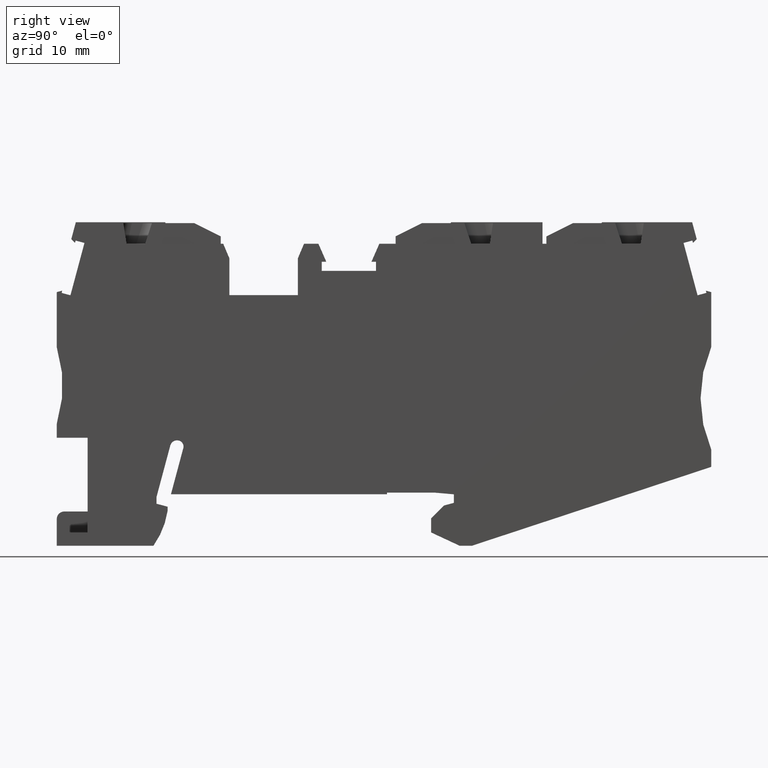
[diagram: clean part render]
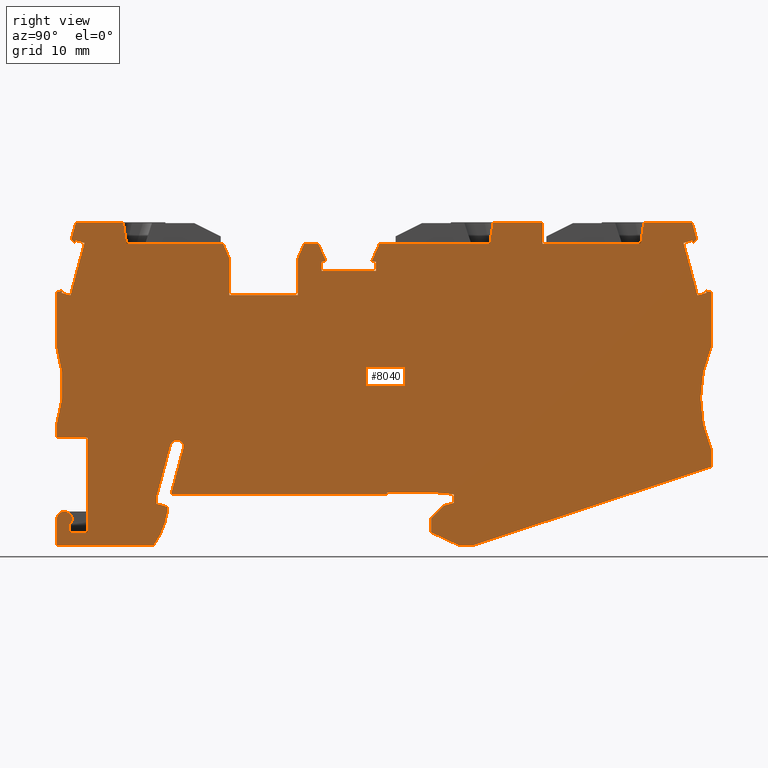
[diagram: same view with one face highlighted and labeled with its STEP entity id]
A machine part, right view. The second image highlights one B-rep face of the part: STEP entity #8040.
In plain terms, the highlighted planar face has unit normal (-1, -0, -0).
Its self-contained STEP definition (entity closure, byte-faithful):
#100=CARTESIAN_POINT('',(55.8575904551391,0.64429055278757,
6.47753305600609E-11));
#110=VERTEX_POINT('',#100);
#160=CARTESIAN_POINT('',(0.,-25.6765009430321,9.61355416103246E-11));
#170=DIRECTION('',(0.904601039469269,0.426259263114737,
-5.07871522614778E-13));
#180=VECTOR('',#170,1.);
#190=LINE('',#160,#180);
#200=CARTESIAN_POINT('',(82.4574372953317,13.1784692883301,
4.98413385275352E-11));
#210=VERTEX_POINT('',#200);
#220=EDGE_CURVE('',#110,#210,#190,.T.);
#1450=CARTESIAN_POINT('',(84.0755498602717,0.,5.06101868327092E-11));
#1460=DIRECTION('',(-0.121869343405147,0.992546151641322,
-5.77177194927003E-14));
#1470=VECTOR('',#1460,1.);
#1480=LINE('',#1450,#1470);
#1490=CARTESIAN_POINT('',(82.2135822231591,15.1645094743224,
4.97283528720052E-11));
#1500=VERTEX_POINT('',#1490);
#1510=EDGE_CURVE('',#210,#1500,#1480,.T.);
#1880=CARTESIAN_POINT('',(50.7279461954708,6.2610103526202,
6.66916782523061E-11));
#1890=VERTEX_POINT('',#1880);
#1920=CARTESIAN_POINT('',(6.79536030056848E-14,4.48955143673839,
-7.09995422008974E-11));
#1930=DIRECTION('',(-0.999390827019096,-0.034899496702501,
-1.05341836001729E-16));
#1940=VECTOR('',#1930,1.);
#1950=LINE('',#1920,#1940);
#1960=CARTESIAN_POINT('',(53.0212909493828,6.34109571613668,
6.55243687615656E-11));
#1970=VERTEX_POINT('',#1960);
#1980=EDGE_CURVE('',#1970,#1890,#1950,.T.);
#2220=CARTESIAN_POINT('',(95.1276197746287,22.7952128573163,
4.2292665589433E-11));
#2230=DIRECTION('',(0.,0.,1.));
#2240=DIRECTION('',(0.992546151641322,0.121869343405147,0.));
#2250=AXIS2_PLACEMENT_3D('',#2220,#2230,#2240);
#2260=CIRCLE('',#2250,15.);
#2270=CARTESIAN_POINT('',(80.7511501013421,27.0750632908093,
4.90357402389605E-11));
#2280=VERTEX_POINT('',#2270);
#2290=EDGE_CURVE('',#2280,#1500,#2260,.T.);
#2560=CARTESIAN_POINT('',(45.5459880980494,35.592208827346,
6.5783711811207E-11));
#2570=DIRECTION('',(-5.04792261591741E-13,-1.20135832601315E-13,-1.));
#2580=DIRECTION('',(-0.992546151641485,-0.121869343403826,
5.15670491659679E-13));
#2590=AXIS2_PLACEMENT_3D('',#2560,#2570,#2580);
#2600=PLANE('',#2590);
#2610=CARTESIAN_POINT('',(0.,-6.21415916436435,9.3797416976373E-11));
#2620=DIRECTION('',(-0.992546151641272,-0.121869343405557,
5.15663900468866E-13));
#2630=VECTOR('',#2620,1.);
#2640=LINE('',#2610,#2630);
#2650=CARTESIAN_POINT('',(54.4182978727007,0.467567645041457,
6.55251278828019E-11));
#2660=VERTEX_POINT('',#2650);
#2670=EDGE_CURVE('',#110,#2660,#2640,.T.);
#2680=ORIENTED_EDGE('',*,*,#2670,.F.);
#2690=CARTESIAN_POINT('',(6.66266484715709E-14,18.1491444593505,
-7.10005635382491E-11));
#2700=DIRECTION('',(-0.951056516295154,0.309016994374948,
-1.25340526193273E-16));
#2710=VECTOR('',#2700,1.);
#2720=LINE('',#2690,#2710);
#2730=CARTESIAN_POINT('',(50.9335437868797,1.5998328840521,
6.71478241230487E-11));
#2740=VERTEX_POINT('',#2730);
#2750=EDGE_CURVE('',#2660,#2740,#2720,.T.);
#2760=ORIENTED_EDGE('',*,*,#2750,.F.);
#2770=CARTESIAN_POINT('',(51.1299785650661,-7.56201908731974E-13,
-7.0993725059654E-11));
#2780=DIRECTION('',(-0.121869343405148,0.992546151641323,
-8.59348256359817E-17));
#2790=VECTOR('',#2780,1.);
#2800=LINE('',#2770,#2790);
#2810=CARTESIAN_POINT('',(50.7320747686677,3.24066636287422,
6.70524077373136E-11));
#2820=VERTEX_POINT('',#2810);
#2830=EDGE_CURVE('',#2740,#2820,#2800,.T.);
#2840=ORIENTED_EDGE('',*,*,#2830,.F.);
#2850=CARTESIAN_POINT('',(48.2001887190497,-7.52933808065804E-13,
-7.09940391514979E-11));
#2860=DIRECTION('',(0.615661475325658,0.788010753606723,
8.69110320229915E-18));
#2870=VECTOR('',#2860,1.);
#2880=LINE('',#2850,#2870);
#2890=CARTESIAN_POINT('',(52.0264251236401,4.89735926884724,
6.61999639712476E-11));
#2900=VERTEX_POINT('',#2890);
#2910=EDGE_CURVE('',#2820,#2900,#2880,.T.);
#2920=ORIENTED_EDGE('',*,*,#2910,.F.);
#2930=CARTESIAN_POINT('',(6.99559683130159E-14,-16.1226809175491,
-7.09980010098258E-11));
#2940=DIRECTION('',(0.927183854566808,0.374606593415861,
7.26373657084862E-17));
#2950=VECTOR('',#2940,1.);
#2960=LINE('',#2930,#2950);
#2970=CARTESIAN_POINT('',(53.1431602927879,5.34854956449537,
6.55820864810583E-11));
#2980=VERTEX_POINT('',#2970);
#2990=EDGE_CURVE('',#2900,#2980,#2960,.T.);
#3000=ORIENTED_EDGE('',*,*,#2990,.F.);
#3010=CARTESIAN_POINT('',(53.799879602532,-7.52389828812708E-13,
-7.09934388295201E-11));
#3020=DIRECTION('',(-0.121869343405148,0.992546151641323,
-8.59348256359817E-17));
#3030=VECTOR('',#3020,1.);
#3040=LINE('',#3010,#3030);
#3050=EDGE_CURVE('',#2980,#1970,#3040,.T.);
#3060=ORIENTED_EDGE('',*,*,#3050,.F.);
#3070=ORIENTED_EDGE('',*,*,#1980,.F.);
#3080=CARTESIAN_POINT('',(6.83865906482598E-14,0.0324017535032963,
-7.09992089366891E-11));
#3090=DIRECTION('',(-0.992546151641322,-0.121869343405148,
-9.82259016566094E-17));
#3100=VECTOR('',#3090,1.);
#3110=LINE('',#3080,#3100);
#3120=CARTESIAN_POINT('',(45.2550570978995,5.58902406790476,
6.95350132570171E-11));
#3130=VERTEX_POINT('',#3120);
#3140=EDGE_CURVE('',#1890,#3130,#3110,.T.);
#3150=ORIENTED_EDGE('',*,*,#3140,.F.);
#3160=CARTESIAN_POINT('',(42.706781851616,26.3430604674701,
-7.09965977682722E-11));
#3170=DIRECTION('',(0.121869343405148,-0.992546151641323,
8.59348256359817E-17));
#3180=VECTOR('',#3170,1.);
#3190=LINE('',#3160,#3180);
#3200=CARTESIAN_POINT('',(45.2794309665806,5.39051483757574,
6.9546557579848E-11));
#3210=VERTEX_POINT('',#3200);
#3220=EDGE_CURVE('',#3130,#3210,#3190,.T.);
#3230=ORIENTED_EDGE('',*,*,#3220,.F.);
#3240=CARTESIAN_POINT('',(7.55115928164551E-14,-0.169100211589233,
-7.09991938702458E-11));
#3250=DIRECTION('',(-0.992546151641322,-0.121869343405148,
-9.82259016566094E-17));
#3260=VECTOR('',#3250,1.);
#3270=LINE('',#3240,#3260);
#3280=CARTESIAN_POINT('',(20.2477989119895,2.3170168870697,
8.2551577740236E-11));
#3290=VERTEX_POINT('',#3280);
#3300=EDGE_CURVE('',#3210,#3290,#3270,.T.);
#3310=ORIENTED_EDGE('',*,*,#3300,.F.);
#3320=CARTESIAN_POINT('',(19.9221634246609,-7.52128149429617E-13,
-7.09970707331382E-11));
#3330=DIRECTION('',(-0.139173100960119,-0.990268068741564,
5.75839333883656E-17));
#3340=VECTOR('',#3330,1.);
#3350=LINE('',#3320,#3340);
#3360=CARTESIAN_POINT('',(21.0263705196209,7.85684173071595,
8.18315165150582E-11));
#3370=VERTEX_POINT('',#3360);
#3380=EDGE_CURVE('',#3370,#3290,#3350,.T.);
#3390=ORIENTED_EDGE('',*,*,#3380,.T.);
#3400=CARTESIAN_POINT('',(20.3331828715015,7.95426290138764,
-7.09976214150927E-11));
#3410=DIRECTION('',(-1.12577348889874E-16,8.16781307540979E-17,1.));
#3420=DIRECTION('',(0.992546151641322,0.121869343405148,
9.82259016566094E-17));
#3430=AXIS2_PLACEMENT_3D('',#3400,#3410,#3420);
#3440=CIRCLE('',#3430,0.700000000000178);
#3450=CARTESIAN_POINT('',(20.4087883003755,8.65016793738396,
8.18313821918876E-11));
#3460=VERTEX_POINT('',#3450);
#3470=EDGE_CURVE('',#3370,#3460,#3440,.T.);
#3480=ORIENTED_EDGE('',*,*,#3470,.F.);
#3490=CARTESIAN_POINT('',(20.2742268604431,7.86156587114061,
-7.09976208045248E-11));
#3500=DIRECTION('',(-1.12577348889874E-16,8.16781307540979E-17,1.));
#3510=DIRECTION('',(0.992546151641322,0.121869343405148,
9.82259016566094E-17));
#3520=AXIS2_PLACEMENT_3D('',#3490,#3500,#3510);
#3530=CIRCLE('',#3520,0.799999999999973);
#3540=CARTESIAN_POINT('',(19.48201240545,7.97290435190924,
8.18721884486355E-11));
#3550=VERTEX_POINT('',#3540);
#3560=EDGE_CURVE('',#3460,#3550,#3530,.T.);
#3570=ORIENTED_EDGE('',*,*,#3560,.F.);
#3580=CARTESIAN_POINT('',(18.3614937728258,-7.52279759925482E-13,
-7.09972380467117E-11));
#3590=DIRECTION('',(0.139173100960507,0.990268068741509,
-5.75839333883403E-17));
#3600=VECTOR('',#3590,1.);
#3610=LINE('',#3580,#3600);
#3620=CARTESIAN_POINT('',(18.6165002904489,1.81446565449965,
8.3435445265089E-11));
#3630=VERTEX_POINT('',#3620);
#3640=EDGE_CURVE('',#3630,#3550,#3610,.T.);
#3650=ORIENTED_EDGE('',*,*,#3640,.T.);
#3660=CARTESIAN_POINT('',(18.8392886591102,-7.48680631094351E-13,
-7.09971868241037E-11));
#3670=DIRECTION('',(-0.121869343405148,0.992546151641323,
-8.59348256359817E-17));
#3680=VECTOR('',#3670,1.);
#3690=LINE('',#3660,#3680);
#3700=CARTESIAN_POINT('',(18.7139957651747,1.02042873317274,
8.34816941832643E-11));
#3710=VERTEX_POINT('',#3700);
#3720=EDGE_CURVE('',#3710,#3630,#3690,.T.);
#3730=ORIENTED_EDGE('',*,*,#3720,.T.);
#3740=CARTESIAN_POINT('',(8.22459660601978E-14,3.65050931862965,
-7.09994794651296E-11));
#3750=DIRECTION('',(-0.990268068741554,0.139173100960182,
-1.17120504732763E-16));
#3760=VECTOR('',#3750,1.);
#3770=LINE('',#3740,#3760);
#3780=CARTESIAN_POINT('',(20.0467569920996,0.833121357881572,
8.28314354157763E-11));
#3790=VERTEX_POINT('',#3780);
#3800=EDGE_CURVE('',#3790,#3710,#3770,.T.);
#3810=ORIENTED_EDGE('',*,*,#3800,.T.);
#3820=CARTESIAN_POINT('',(20.1490514322064,-7.52106108504245E-13,
-7.0997046409321E-11));
#3830=DIRECTION('',(-0.121869343405616,0.992546151641265,
-8.59348256360326E-17));
#3840=VECTOR('',#3830,1.);
#3850=LINE('',#3820,#3840);
#3860=CARTESIAN_POINT('',(20.1018012370323,0.384821958285007,
8.2857408012641E-11));
#3870=VERTEX_POINT('',#3860);
#3880=EDGE_CURVE('',#3870,#3790,#3850,.T.);
#3890=ORIENTED_EDGE('',*,*,#3880,.T.);
#3900=CARTESIAN_POINT('',(10.6053593749794,0.644806497501176,
-7.09981177655912E-11));
#3910=DIRECTION('',(-1.12577348889874E-16,8.16781307540979E-17,1.));
#3920=DIRECTION('',(0.992546151641322,0.121869343405148,
9.82259016566094E-17));
#3930=AXIS2_PLACEMENT_3D('',#3900,#3910,#3920);
#3940=CIRCLE('',#3930,9.49999999999899);
#3950=CARTESIAN_POINT('',(18.9548874062867,-3.88679163719655,
8.39496621322146E-11));
#3960=VERTEX_POINT('',#3950);
#3970=EDGE_CURVE('',#3960,#3870,#3940,.T.);
#3980=ORIENTED_EDGE('',*,*,#3970,.T.);
#3990=CARTESIAN_POINT('',(8.32042644918818E-14,-6.21415916434217,
-7.09987418769476E-11));
#4000=DIRECTION('',(0.992546151641318,0.121869343405185,
9.82259016565085E-17));
#4010=VECTOR('',#4000,1.);
#4020=LINE('',#3990,#4010);
#4030=CARTESIAN_POINT('',(7.74799288123761,-5.26282526054029,
8.97720167516484E-11));
#4040=VERTEX_POINT('',#4030);
#4050=EDGE_CURVE('',#4040,#3960,#4020,.T.);
#4060=ORIENTED_EDGE('',*,*,#4050,.T.);
#4070=CARTESIAN_POINT('',(7.1017991925155,-7.53373577490648E-13,
-7.09984451565791E-11));
#4080=DIRECTION('',(0.121869343404785,-0.992546151641367,
8.59348256359561E-17));
#4090=VECTOR('',#4080,1.);
#4100=LINE('',#4070,#4090);
#4110=CARTESIAN_POINT('',(7.37019791668276,-2.18593219045191,
8.95930703106499E-11));
#4120=VERTEX_POINT('',#4110);
#4130=EDGE_CURVE('',#4120,#4040,#4100,.T.);
#4140=ORIENTED_EDGE('',*,*,#4130,.T.);
#4150=CARTESIAN_POINT('',(8.26348945315978,-2.07624978138726,
-7.09981653734458E-11));
#4160=DIRECTION('',(-1.12577348889874E-16,8.16781307540979E-17,1.));
#4170=DIRECTION('',(0.992546151641322,0.121869343405148,
9.82259016566094E-17));
#4180=AXIS2_PLACEMENT_3D('',#4150,#4160,#4170);
#4190=CIRCLE('',#4180,0.899999999999821);
#4200=CARTESIAN_POINT('',(8.94076958501218,-2.66894837510727,
8.91290849146351E-11));
#4210=VERTEX_POINT('',#4200);
#4220=EDGE_CURVE('',#4210,#4120,#4190,.T.);
#4230=ORIENTED_EDGE('',*,*,#4220,.T.);
#4240=CARTESIAN_POINT('',(5.93294693330531,21.8278012943094,
-7.10002025448849E-11));
#4250=DIRECTION('',(0.121869343405115,-0.992546151641327,
8.59348256359943E-17));
#4260=VECTOR('',#4250,1.);
#4270=LINE('',#4240,#4260);
#4280=CARTESIAN_POINT('',(9.0540080935922,-3.59120201797049,
8.89119094419314E-11));
#4290=VERTEX_POINT('',#4280);
#4300=EDGE_CURVE('',#4210,#4290,#4270,.T.);
#4310=ORIENTED_EDGE('',*,*,#4300,.F.);
#4320=CARTESIAN_POINT('',(53.0248137783534,1.80773405057986,
-7.09936570869798E-11));
#4330=DIRECTION('',(0.992546151641322,0.121869343405148,
9.82259016566094E-17));
#4340=VECTOR('',#4330,1.);
#4350=LINE('',#4320,#4340);
#4360=CARTESIAN_POINT('',(11.138355012039,-3.33527639681968,
8.78290006792696E-11));
#4370=VERTEX_POINT('',#4360);
#4380=EDGE_CURVE('',#4290,#4370,#4350,.T.);
#4390=ORIENTED_EDGE('',*,*,#4380,.F.);
#4400=CARTESIAN_POINT('',(10.7288345641658,-7.53021230899832E-13,
-7.09980563156425E-11));
#4410=DIRECTION('',(0.121869343405148,-0.992546151641323,
8.59348256359817E-17));
#4420=VECTOR('',#4410,1.);
#4430=LINE('',#4400,#4420);
#4440=CARTESIAN_POINT('',(9.78560530024175,7.68198588639992,
8.71883246640411E-11));
#4450=VERTEX_POINT('',#4440);
#4460=EDGE_CURVE('',#4450,#4370,#4430,.T.);
#4470=ORIENTED_EDGE('',*,*,#4460,.T.);
#4480=CARTESIAN_POINT('',(7.48656240668463E-14,6.48046463644061,
-7.09996910628738E-11));
#4490=DIRECTION('',(0.992546151641322,0.121869343405148,
9.82259016566094E-17));
#4500=VECTOR('',#4490,1.);
#4510=LINE('',#4480,#4500);
#4520=CARTESIAN_POINT('',(6.21243915431466,7.24325625013914,
8.90447057838766E-11));
#4530=VERTEX_POINT('',#4520);
#4540=EDGE_CURVE('',#4530,#4450,#4510,.T.);
#4550=ORIENTED_EDGE('',*,*,#4540,.T.);
#4560=CARTESIAN_POINT('',(7.10179919249531,-7.53373577490651E-13,
-7.09984451565791E-11));
#4570=DIRECTION('',(0.121869343405148,-0.992546151641323,
8.59348256359817E-17));
#4580=VECTOR('',#4570,1.);
#4590=LINE('',#4560,#4580);
#4600=CARTESIAN_POINT('',(6.01744820486727,8.83133009275838,
9.60734781128143E-11));
#4610=VERTEX_POINT('',#4600);
#4620=EDGE_CURVE('',#4610,#4530,#4590,.T.);
#4630=ORIENTED_EDGE('',*,*,#4620,.T.);
#4640=CARTESIAN_POINT('',(-8.7333940894483,11.5539486132723,
-7.10010066854422E-11));
#4650=DIRECTION('',(-1.12577348889874E-16,8.16781307540979E-17,1.));
#4660=DIRECTION('',(0.992546151641322,0.121869343405148,
9.82259016566094E-17));
#4670=AXIS2_PLACEMENT_3D('',#4640,#4650,#4660);
#4680=CIRCLE('',#4670,15.);
#4690=CARTESIAN_POINT('',(4.920624114219,17.7642454575369,
9.60726250114368E-11));
#4700=VERTEX_POINT('',#4690);
#4710=EDGE_CURVE('',#4610,#4700,#4680,.T.);
#4720=ORIENTED_EDGE('',*,*,#4710,.F.);
#4730=CARTESIAN_POINT('',(7.1017991924953,-7.49820863811847E-13,
-7.10004435580235E-11));
#4740=DIRECTION('',(0.121869343405148,-0.992546151641323,
8.7278529820656E-17));
#4750=VECTOR('',#4740,1.);
#4760=LINE('',#4730,#4750);
#4770=CARTESIAN_POINT('',(4.14066998406936,24.1164620914143,
8.80635400408703E-11));
#4780=VERTEX_POINT('',#4770);
#4790=EDGE_CURVE('',#4780,#4700,#4760,.T.);
#4800=ORIENTED_EDGE('',*,*,#4790,.T.);
#4810=CARTESIAN_POINT('',(8.04203278848049E-14,22.4435228253566,
-7.10028830333762E-11));
#4820=DIRECTION('',(0.927183854569489,0.374606593409226,
7.13903257323892E-17));
#4830=VECTOR('',#4820,1.);
#4840=LINE('',#4810,#4830);
#4850=CARTESIAN_POINT('',(4.75394827525513,24.3642426047835,
8.77239814760513E-11));
#4860=VERTEX_POINT('',#4850);
#4870=EDGE_CURVE('',#4780,#4860,#4840,.T.);
#4880=ORIENTED_EDGE('',*,*,#4870,.F.);
#4890=CARTESIAN_POINT('',(1.32977728266994,-7.50381584078855E-13,
-7.1001062354968E-11));
#4900=DIRECTION('',(-0.139173100960752,-0.990268068741474,
5.91228089567854E-17));
#4910=VECTOR('',#4900,1.);
#4920=LINE('',#4890,#4910);
#4930=CARTESIAN_POINT('',(4.71605037920686,24.094585062701,
8.77758786556787E-11));
#4940=VERTEX_POINT('',#4930);
#4950=EDGE_CURVE('',#4860,#4940,#4920,.T.);
#4960=ORIENTED_EDGE('',*,*,#4950,.F.);
#4970=CARTESIAN_POINT('',(8.01955490884845E-14,24.7573827194942,
-7.10030560423035E-11));
#4980=DIRECTION('',(0.990268068741542,-0.139173100960264,
1.1656901722391E-16));
#4990=VECTOR('',#4980,1.);
#5000=LINE('',#4970,#4990);
#5010=CARTESIAN_POINT('',(5.77563721275947,23.9456698446736,
8.72588959077152E-11));
#5020=VERTEX_POINT('',#5010);
#5030=EDGE_CURVE('',#4940,#5020,#5000,.T.);
#5040=ORIENTED_EDGE('',*,*,#5030,.F.);
#5050=CARTESIAN_POINT('',(2.41029278527678,-7.50276617924776E-13,
-7.10009465169303E-11));
#5060=DIRECTION('',(-0.139173100960239,-0.990268068741546,
5.91228089568864E-17));
#5070=VECTOR('',#5060,1.);
#5080=LINE('',#5050,#5070);
#5090=CARTESIAN_POINT('',(6.65590707633302,30.2091153794641,
8.60621441822188E-11));
#5100=VERTEX_POINT('',#5090);
#5110=EDGE_CURVE('',#5100,#5020,#5080,.T.);
#5120=ORIENTED_EDGE('',*,*,#5110,.T.);
#5130=CARTESIAN_POINT('',(7.95750715891313E-14,31.1445421156725,
-7.10035336146918E-11));
#5140=DIRECTION('',(-0.990268068741591,0.13917310095992,
-1.1656901722391E-16));
#5150=VECTOR('',#5140,1.);
#5160=LINE('',#5130,#5150);
#5170=CARTESIAN_POINT('',(5.59632024277933,30.3580305974913,
8.65791269301648E-11));
#5180=VERTEX_POINT('',#5170);
#5190=EDGE_CURVE('',#5100,#5180,#5160,.T.);
#5200=ORIENTED_EDGE('',*,*,#5190,.F.);
#5210=CARTESIAN_POINT('',(1.32977728270688,-7.50381584078852E-13,
-7.1001062354968E-11));
#5220=DIRECTION('',(-0.139173100959432,-0.99026806874166,
5.91228089569874E-17));
#5230=VECTOR('',#5220,1.);
#5240=LINE('',#5210,#5230);
#5250=CARTESIAN_POINT('',(5.55842234673109,30.0883730554065,
8.66302941365563E-11));
#5260=VERTEX_POINT('',#5250);
#5270=EDGE_CURVE('',#5180,#5260,#5240,.T.);
#5280=ORIENTED_EDGE('',*,*,#5270,.F.);
#5290=CARTESIAN_POINT('',(7.92558016318644E-14,34.4310885409489,
-7.10037793520734E-11));
#5300=DIRECTION('',(0.788010753607563,-0.615661475324582,
1.30513134688569E-16));
#5310=VECTOR('',#5300,1.);
#5320=LINE('',#5290,#5310);
#5330=CARTESIAN_POINT('',(5.07616663276844,30.4651525130251,
8.68284717865709E-11));
#5340=VERTEX_POINT('',#5330);
#5350=EDGE_CURVE('',#5340,#5260,#5320,.T.);
#5360=ORIENTED_EDGE('',*,*,#5350,.T.);
#5370=CARTESIAN_POINT('',(0.794568669239845,-7.50433576659844E-13,
-7.10011197326876E-11));
#5380=DIRECTION('',(-0.139173100960457,-0.990268068741516,
5.91228089568612E-17));
#5390=VECTOR('',#5380,1.);
#5400=LINE('',#5370,#5390);
#5410=CARTESIAN_POINT('',(5.3589603462686,32.477334339739,
8.64440185993758E-11));
#5420=VERTEX_POINT('',#5410);
#5430=EDGE_CURVE('',#5420,#5340,#5400,.T.);
#5440=ORIENTED_EDGE('',*,*,#5430,.T.);
#5450=CARTESIAN_POINT('',(7.95095189922274E-14,31.8193367467264,
-7.10033620249548E-11));
#5460=DIRECTION('',(-0.992546151641322,-0.121869343405148,
-9.72949153238301E-17));
#5470=VECTOR('',#5460,1.);
#5480=LINE('',#5450,#5470);
#5490=CARTESIAN_POINT('',(10.8549108097143,33.1521522041373,
8.35887527207467E-11));
#5500=VERTEX_POINT('',#5490);
#5510=EDGE_CURVE('',#5500,#5420,#5480,.T.);
#5520=ORIENTED_EDGE('',*,*,#5510,.T.);
#5530=CARTESIAN_POINT('',(20.1301439303683,-7.48555231585537E-13,
-7.09988247931632E-11));
#5540=DIRECTION('',(0.269431410275851,-0.96301958191761,
1.00890386406827E-16));
#5550=VECTOR('',#5540,1.);
#5560=LINE('',#5530,#5550);
#5570=CARTESIAN_POINT('',(11.5362037454069,30.717029894447,
8.3537267409713E-11));
#5580=VERTEX_POINT('',#5570);
#5590=EDGE_CURVE('',#5500,#5580,#5560,.T.);
#5600=ORIENTED_EDGE('',*,*,#5590,.F.);
#5610=CARTESIAN_POINT('',(7.97542041246558E-14,29.3005621830808,
-7.10031736944139E-11));
#5620=DIRECTION('',(0.992546151641322,0.121869343405148,
9.72949153238301E-17));
#5630=VECTOR('',#5620,1.);
#5640=LINE('',#5610,#5630);
#5650=CARTESIAN_POINT('',(22.7387593504506,32.0925307654027,
7.77177839968377E-11));
#5660=VERTEX_POINT('',#5650);
#5670=EDGE_CURVE('',#5580,#5660,#5640,.T.);
#5680=ORIENTED_EDGE('',*,*,#5670,.F.);
#5690=CARTESIAN_POINT('',(41.2011308712365,-7.46508300785871E-13,
-7.0996565851229E-11));
#5700=DIRECTION('',(0.498657173381274,-0.866799298243485,
1.18270367560133E-16));
#5710=VECTOR('',#5700,1.);
#5720=LINE('',#5690,#5710);
#5730=CARTESIAN_POINT('',(23.6590813655678,30.4927653966377,
7.74453656760886E-11));
#5740=VERTEX_POINT('',#5730);
#5750=EDGE_CURVE('',#5660,#5740,#5720,.T.);
#5760=ORIENTED_EDGE('',*,*,#5750,.F.);
#5770=CARTESIAN_POINT('',(27.4031221755102,-7.47848701643817E-13,
-7.09982671288921E-11));
#5780=DIRECTION('',(-0.121869343405176,0.992546151641319,
-8.72785298206686E-17));
#5790=VECTOR('',#5780,1.);
#5800=LINE('',#5770,#5790);
#5810=CARTESIAN_POINT('',(24.1831195422099,26.2248169445816,
7.76930425593251E-11));
#5820=VERTEX_POINT('',#5810);
#5830=EDGE_CURVE('',#5820,#5740,#5800,.T.);
#5840=ORIENTED_EDGE('',*,*,#5830,.T.);
#5850=CARTESIAN_POINT('',(6.61305937272783E-14,23.2555032303283,
-7.10009453442763E-11));
#5860=DIRECTION('',(-0.992546151641319,-0.121869343405174,
-9.82259016566094E-17));
#5870=VECTOR('',#5860,1.);
#5880=LINE('',#5850,#5870);
#5890=CARTESIAN_POINT('',(32.1234887553402,27.199771691823,
7.35677313555742E-11));
#5900=VERTEX_POINT('',#5890);
#5910=EDGE_CURVE('',#5900,#5820,#5880,.T.);
#5920=ORIENTED_EDGE('',*,*,#5910,.T.);
#5930=CARTESIAN_POINT('',(35.4632007791809,-7.54171136577382E-13,
-7.09954046364775E-11));
#5940=DIRECTION('',(0.121869343405179,-0.992546151641319,
8.5934825636007E-17));
#5950=VECTOR('',#5940,1.);
#5960=LINE('',#5930,#5950);
#5970=CARTESIAN_POINT('',(31.5994505786982,31.4677201438788,
7.33192197480769E-11));
#5980=VERTEX_POINT('',#5970);
#5990=EDGE_CURVE('',#5980,#5900,#5960,.T.);
#6000=ORIENTED_EDGE('',*,*,#5990,.T.);
#6010=CARTESIAN_POINT('',(22.6289845756453,-7.55417910281448E-13,
-7.09967805449366E-11));
#6020=DIRECTION('',(-0.274147194873143,-0.961687743263471,
4.09156335346837E-17));
#6030=VECTOR('',#6020,1.);
#6040=LINE('',#6010,#6030);
#6050=CARTESIAN_POINT('',(32.1054168262376,33.2426116906947,
7.28508921909865E-11));
#6060=VERTEX_POINT('',#6050);
#6070=EDGE_CURVE('',#6060,#5980,#6040,.T.);
#6080=ORIENTED_EDGE('',*,*,#6070,.T.);
#6090=CARTESIAN_POINT('',(5.84379220518519E-14,29.3005621830756,
-7.10013973375745E-11));
#6100=DIRECTION('',(-0.992546151641304,-0.121869343405294,
-9.82259016567104E-17));
#6110=VECTOR('',#6100,1.);
#6120=LINE('',#6090,#6110);
#6130=CARTESIAN_POINT('',(33.7648010461218,33.4463584535027,
7.1988774183463E-11));
#6140=VERTEX_POINT('',#6130);
#6150=EDGE_CURVE('',#6140,#6060,#6120,.T.);
#6160=ORIENTED_EDGE('',*,*,#6150,.T.);
#6170=CARTESIAN_POINT('',(53.6422195780397,-7.52405144619269E-13,
-7.09934557316634E-11));
#6180=DIRECTION('',(0.510892985900243,-0.859644320028892,
1.18191535969853E-16));
#6190=VECTOR('',#6180,1.);
#6200=LINE('',#6170,#6190);
#6210=CARTESIAN_POINT('',(34.9394936524417,31.4697843867763,
7.16332430053619E-11));
#6220=VERTEX_POINT('',#6210);
#6230=EDGE_CURVE('',#6140,#6220,#6200,.T.);
#6240=ORIENTED_EDGE('',*,*,#6230,.F.);
#6250=CARTESIAN_POINT('',(6.57493742909557E-14,27.1797540004905,
-7.1001238763259E-11));
#6260=DIRECTION('',(-0.992546151641319,-0.121869343405174,
-9.82259016566094E-17));
#6270=VECTOR('',#6260,1.);
#6280=LINE('',#6250,#6270);
#6290=CARTESIAN_POINT('',(34.4155300604786,31.405449747208,
7.19051657119082E-11));
#6300=VERTEX_POINT('',#6290);
#6310=EDGE_CURVE('',#6220,#6300,#6280,.T.);
#6320=ORIENTED_EDGE('',*,*,#6310,.F.);
#6330=CARTESIAN_POINT('',(38.2716344176487,-7.53898312654638E-13,
-7.099510355478E-11));
#6340=DIRECTION('',(0.121869343405174,-0.99254615164132,
8.59348256359943E-17));
#6350=VECTOR('',#6340,1.);
#6360=LINE('',#6330,#6350);
#6370=CARTESIAN_POINT('',(34.5459302579221,30.3434253649522,
7.19669310963818E-11));
#6380=VERTEX_POINT('',#6370);
#6390=EDGE_CURVE('',#6300,#6380,#6360,.T.);
#6400=ORIENTED_EDGE('',*,*,#6390,.F.);
#6410=CARTESIAN_POINT('',(6.58540995276358E-14,26.101718487252,
-7.10011581577875E-11));
#6420=DIRECTION('',(0.992546151641326,0.121869343405116,
9.82259016566094E-17));
#6430=VECTOR('',#6420,1.);
#6440=LINE('',#6410,#6430);
#6450=CARTESIAN_POINT('',(40.8237846670535,31.1142489619895,
6.87053926964639E-11));
#6460=VERTEX_POINT('',#6450);
#6470=EDGE_CURVE('',#6380,#6460,#6440,.T.);
#6480=ORIENTED_EDGE('',*,*,#6470,.F.);
#6490=CARTESIAN_POINT('',(44.644134063676,-7.53279259269385E-13,
-7.09944203828567E-11));
#6500=DIRECTION('',(-0.121869343405174,0.99254615164132,
-8.59348256359943E-17));
#6510=VECTOR('',#6500,1.);
#6520=LINE('',#6490,#6510);
#6530=CARTESIAN_POINT('',(40.69338446961,32.1762733442457,
6.86435475211271E-11));
#6540=VERTEX_POINT('',#6530);
#6550=EDGE_CURVE('',#6460,#6540,#6520,.T.);
#6560=ORIENTED_EDGE('',*,*,#6550,.F.);
#6570=CARTESIAN_POINT('',(6.57493742909557E-14,27.1797540004905,
-7.1001238763259E-11));
#6580=DIRECTION('',(-0.992546151641319,-0.121869343405174,
-9.82259016566094E-17));
#6590=VECTOR('',#6580,1.);
#6600=LINE('',#6570,#6590);
#6610=CARTESIAN_POINT('',(40.1694208776455,32.1119387046773,
6.89155116510313E-11));
#6620=VERTEX_POINT('',#6610);
#6630=EDGE_CURVE('',#6540,#6620,#6600,.T.);
#6640=ORIENTED_EDGE('',*,*,#6630,.F.);
#6650=CARTESIAN_POINT('',(30.5211237682859,-7.54651232249995E-13,
-7.09959344581243E-11));
#6660=DIRECTION('',(0.287750497361288,0.957705409438796,
-3.91549328700319E-17));
#6670=VECTOR('',#6660,1.);
#6680=LINE('',#6650,#6670);
#6690=CARTESIAN_POINT('',(40.8310435482321,34.3139839363579,
6.83169607769671E-11));
#6700=VERTEX_POINT('',#6690);
#6710=EDGE_CURVE('',#6620,#6700,#6680,.T.);
#6720=ORIENTED_EDGE('',*,*,#6710,.F.);
#6730=CARTESIAN_POINT('',(6.55433494094513E-14,29.3005621830808,
-7.10013973375745E-11));
#6740=DIRECTION('',(-0.992546151641322,-0.121869343405148,
-9.82259016566094E-17));
#6750=VECTOR('',#6740,1.);
#6760=LINE('',#6730,#6750);
#6770=CARTESIAN_POINT('',(53.6304524096662,35.8855537332258,
6.16674997050885E-11));
#6780=VERTEX_POINT('',#6770);
#6790=EDGE_CURVE('',#6780,#6700,#6760,.T.);
#6800=ORIENTED_EDGE('',*,*,#6790,.T.);
#6810=CARTESIAN_POINT('',(52.7229110755848,4.00188860253452,
-7.10007445314898E-11));
#6820=DIRECTION('',(-0.0284526231580068,-0.999595142162781,
6.87189874650541E-17));
#6830=VECTOR('',#6820,1.);
#6840=LINE('',#6810,#6830);
#6850=CARTESIAN_POINT('',(53.7023986283332,38.4131621817386,
6.13278779341542E-11));
#6860=VERTEX_POINT('',#6850);
#6870=EDGE_CURVE('',#6860,#6780,#6840,.T.);
#6880=ORIENTED_EDGE('',*,*,#6870,.T.);
#6890=CARTESIAN_POINT('',(-0.0992546151641314,31.8071498123822,
8.92282312783558E-11));
#6900=DIRECTION('',(0.992546151641315,0.121869343405205,
-5.15663900468866E-13));
#6910=VECTOR('',#6900,1.);
#6920=LINE('',#6890,#6910);
#6930=CARTESIAN_POINT('',(59.4247919657573,39.1157837349882,
5.84059402100903E-11));
#6940=VERTEX_POINT('',#6930);
#6950=EDGE_CURVE('',#6860,#6940,#6920,.T.);
#6960=ORIENTED_EDGE('',*,*,#6950,.F.);
#6970=CARTESIAN_POINT('',(64.2276062960323,-1.77635683940025E-15,
6.06292751524469E-11));
#6980=DIRECTION('',(0.121869343405185,-0.992546151641317,
5.77246583866042E-14));
#6990=VECTOR('',#6980,1.);
#7000=LINE('',#6970,#6990);
#7010=CARTESIAN_POINT('',(59.7294653242699,36.6344183558872,
5.85503417153481E-11));
#7020=VERTEX_POINT('',#7010);
#7030=EDGE_CURVE('',#6940,#7020,#7000,.T.);
#7040=ORIENTED_EDGE('',*,*,#7030,.F.);
#7050=CARTESIAN_POINT('',(-0.0992546151641314,29.288375248741,
8.95308263576939E-11));
#7060=DIRECTION('',(0.992546151641322,0.121869343405148,
-5.1567083936277E-13));
#7070=VECTOR('',#7060,1.);
#7080=LINE('',#7050,#7070);
#7090=CARTESIAN_POINT('',(71.0992646785534,38.030454177157,
5.2591669992787E-11));
#7100=VERTEX_POINT('',#7090);
#7110=EDGE_CURVE('',#7020,#7100,#7080,.T.);
#7120=ORIENTED_EDGE('',*,*,#7110,.F.);
#7130=CARTESIAN_POINT('',(70.191723344472,6.14678904646578,
-7.08798033193918E-11));
#7140=DIRECTION('',(-0.0284526231580068,-0.999595142162781,
6.87189874650541E-17));
#7150=VECTOR('',#7140,1.);
#7160=LINE('',#7130,#7150);
#7170=CARTESIAN_POINT('',(71.1712108972204,40.5580626256698,
5.22517253526063E-11));
#7180=VERTEX_POINT('',#7170);
#7190=EDGE_CURVE('',#7180,#7100,#7160,.T.);
#7200=ORIENTED_EDGE('',*,*,#7190,.T.);
#7210=CARTESIAN_POINT('',(82.1253763220987,41.9030650174219,
-7.08812231992868E-11));
#7220=DIRECTION('',(0.992546151641315,0.121869343405205,
8.64803049957699E-17));
#7230=VECTOR('',#7220,1.);
#7240=LINE('',#7210,#7230);
#7250=CARTESIAN_POINT('',(76.7664159758302,41.245067424409,
4.93452803227237E-11));
#7260=VERTEX_POINT('',#7250);
#7270=EDGE_CURVE('',#7180,#7260,#7240,.T.);
#7280=ORIENTED_EDGE('',*,*,#7270,.F.);
#7290=CARTESIAN_POINT('',(89.0522040005967,10.8366750004896,
-7.08785603964934E-11));
#7300=DIRECTION('',(0.374606593416333,-0.927183854566618,
1.0219906161671E-16));
#7310=VECTOR('',#7300,1.);
#7320=LINE('',#7290,#7310);
#7330=CARTESIAN_POINT('',(77.5276003492671,39.3610699886919,
4.91870829454842E-11));
#7340=VERTEX_POINT('',#7330);
#7350=EDGE_CURVE('',#7260,#7340,#7320,.T.);
#7360=ORIENTED_EDGE('',*,*,#7350,.F.);
#7370=CARTESIAN_POINT('',(81.4935363772044,44.4372366214497,
-7.08816869753584E-11));
#7380=DIRECTION('',(-0.615661475326689,-0.788010753605917,
-2.72121469586252E-18));
#7390=VECTOR('',#7380,1.);
#7400=LINE('',#7370,#7390);
#7410=CARTESIAN_POINT('',(77.1508208916471,38.8788142747303,
4.94348017308416E-11));
#7420=VERTEX_POINT('',#7410);
#7430=EDGE_CURVE('',#7340,#7420,#7400,.T.);
#7440=ORIENTED_EDGE('',*,*,#7430,.F.);
#7450=CARTESIAN_POINT('',(88.5328933702836,10.7071963181784,
-7.08786009467856E-11));
#7460=DIRECTION('',(0.374606593415373,-0.927183854567006,
1.02199061616634E-16));
#7470=VECTOR('',#7460,1.);
#7480=LINE('',#7450,#7470);
#7490=CARTESIAN_POINT('',(77.0488126613327,39.131293504522,
4.94542554344912E-11));
#7500=VERTEX_POINT('',#7490);
#7510=EDGE_CURVE('',#7500,#7420,#7480,.T.);
#7520=ORIENTED_EDGE('',*,*,#7510,.T.);
#7530=CARTESIAN_POINT('',(82.2886239183837,41.2483146707964,
-7.08813827880733E-11));
#7540=DIRECTION('',(0.927183854566821,0.37460659341583,
6.21468438096052E-17));
#7550=VECTOR('',#7540,1.);
#7560=LINE('',#7530,#7550);
#7570=CARTESIAN_POINT('',(76.0567259369461,38.730464449567,
5.0003231576814E-11));
#7580=VERTEX_POINT('',#7570);
#7590=EDGE_CURVE('',#7580,#7500,#7560,.T.);
#7600=ORIENTED_EDGE('',*,*,#7590,.T.);
#7610=CARTESIAN_POINT('',(87.4844737959651,10.4457959595718,
-7.08786828124697E-11));
#7620=DIRECTION('',(0.374606593416128,-0.927183854566701,
1.02199061616659E-16));
#7630=VECTOR('',#7620,1.);
#7640=LINE('',#7610,#7630);
#7650=CARTESIAN_POINT('',(78.4261126403031,32.8660265694324,
4.95137725708043E-11));
#7660=VERTEX_POINT('',#7650);
#7670=EDGE_CURVE('',#7580,#7660,#7640,.T.);
#7680=ORIENTED_EDGE('',*,*,#7670,.F.);
#7690=CARTESIAN_POINT('',(83.8338176270048,35.050881205641,
-7.08807916226294E-11));
#7700=DIRECTION('',(-0.927183854566691,-0.374606593416152,
-6.21468438094032E-17));
#7710=VECTOR('',#7700,1.);
#7720=LINE('',#7690,#7710);
#7730=CARTESIAN_POINT('',(79.4181993646887,33.2668556243873,
4.89650553672211E-11));
#7740=VERTEX_POINT('',#7730);
#7750=EDGE_CURVE('',#7740,#7660,#7720,.T.);
#7760=ORIENTED_EDGE('',*,*,#7750,.T.);
#7770=CARTESIAN_POINT('',(88.5328933703194,10.7071963181873,
-7.08786009467855E-11));
#7780=DIRECTION('',(0.374606593416609,-0.927183854566507,
1.02199061616735E-16));
#7790=VECTOR('',#7780,1.);
#7800=LINE('',#7770,#7790);
#7810=CARTESIAN_POINT('',(79.3161911343749,33.5193348541769,
4.89859856982135E-11));
#7820=VERTEX_POINT('',#7810);
#7830=EDGE_CURVE('',#7820,#7740,#7800,.T.);
#7840=ORIENTED_EDGE('',*,*,#7830,.T.);
#7850=CARTESIAN_POINT('',(84.3935909987467,32.8057528391579,
-7.08805774626364E-11));
#7860=DIRECTION('',(-0.990268068742582,0.139173100952866,
-1.0492027631179E-16));
#7870=VECTOR('',#7860,1.);
#7880=LINE('',#7850,#7870);
#7890=CARTESIAN_POINT('',(79.9711959708171,33.427279927734,
4.8666351412657E-11));
#7900=VERTEX_POINT('',#7890);
#7910=EDGE_CURVE('',#7900,#7820,#7880,.T.);
#7920=ORIENTED_EDGE('',*,*,#7910,.T.);
#7930=CARTESIAN_POINT('',(83.812189199734,2.14490044393051,
-7.08711528758495E-11));
#7940=DIRECTION('',(-0.121869343405148,0.992546151641323,
-8.59348256359817E-17));
#7950=VECTOR('',#7940,1.);
#7960=LINE('',#7930,#7950);
#7970=EDGE_CURVE('',#2280,#7900,#7960,.T.);
#7980=ORIENTED_EDGE('',*,*,#7970,.T.);
#7990=ORIENTED_EDGE('',*,*,#2290,.F.);
#8000=ORIENTED_EDGE('',*,*,#1510,.T.);
#8010=ORIENTED_EDGE('',*,*,#220,.T.);
#8020=EDGE_LOOP('',(#8010,#8000,#7990,#7980,#7920,#7840,#7760,#7680,
#7600,#7520,#7440,#7360,#7280,#7200,#7120,#7040,#6960,#6880,#6800,#6720,
#6640,#6560,#6480,#6400,#6320,#6240,#6160,#6080,#6000,#5920,#5840,#5760,
#5680,#5600,#5520,#5440,#5360,#5280,#5200,#5120,#5040,#4960,#4880,#4800,
#4720,#4630,#4550,#4470,#4390,#4310,#4230,#4140,#4060,#3980,#3890,#3810,
#3730,#3650,#3570,#3480,#3390,#3310,#3230,#3150,#3070,#3060,#3000,#2920,
#2840,#2760,#2680));
#8030=FACE_OUTER_BOUND('',#8020,.T.);
#8040=ADVANCED_FACE('',(#8030),#2600,.F.);